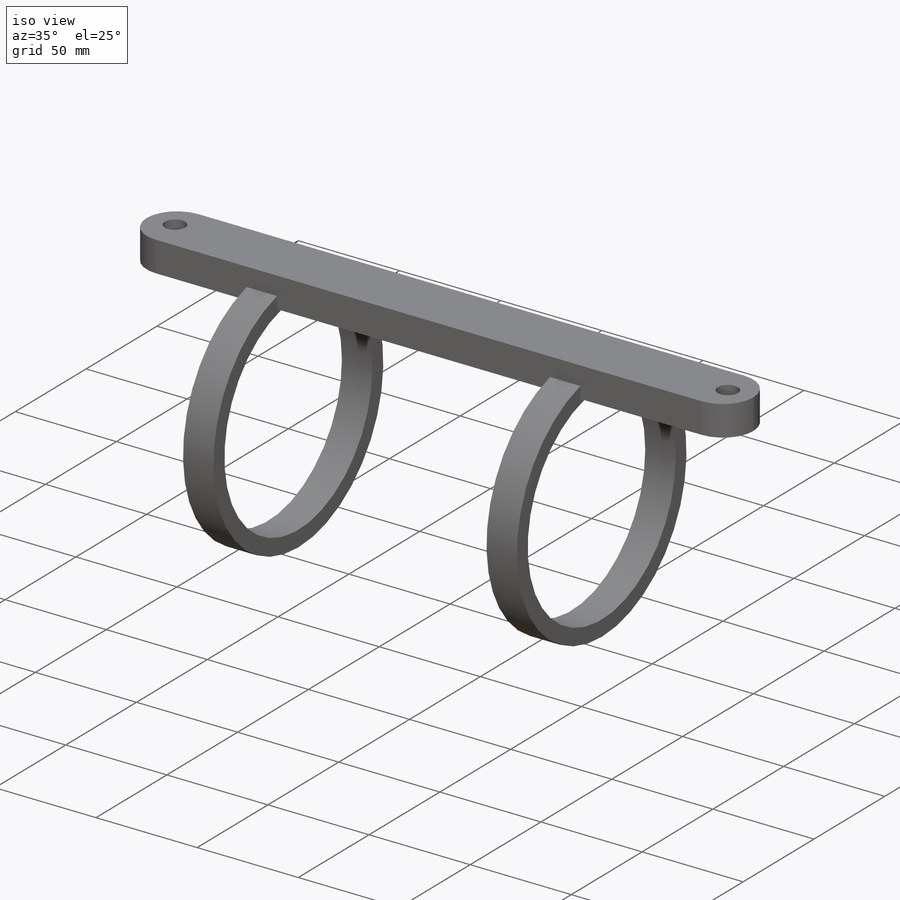
[diagram: iso view]
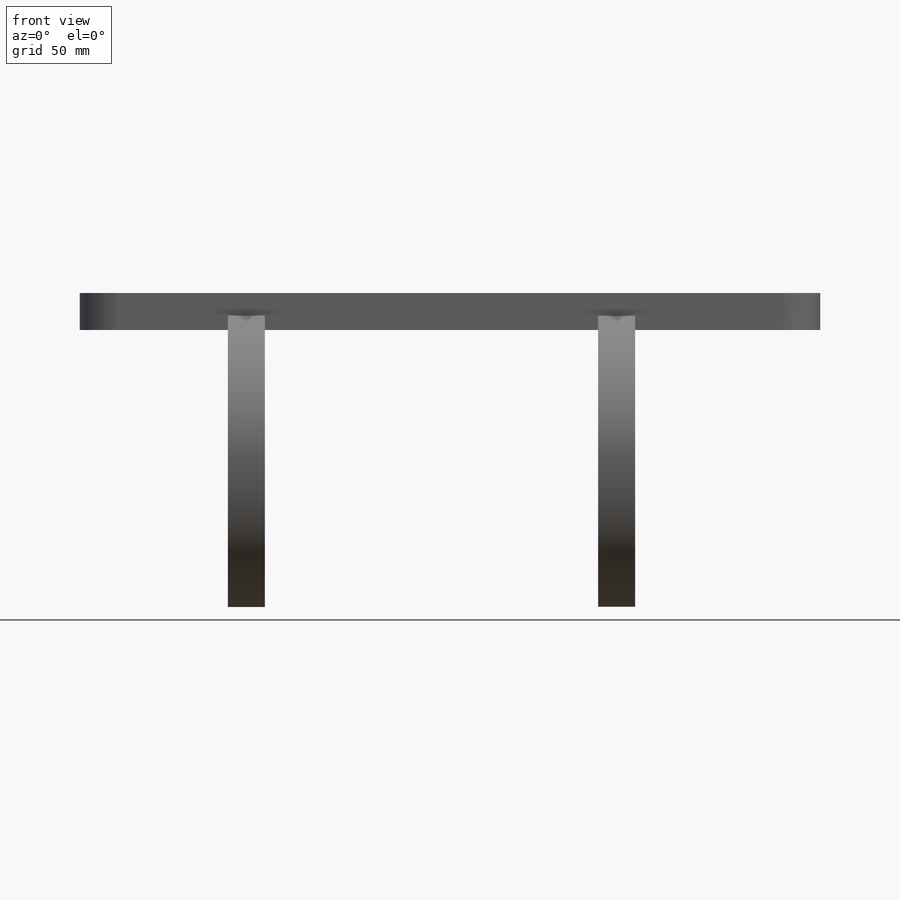
[diagram: front view]
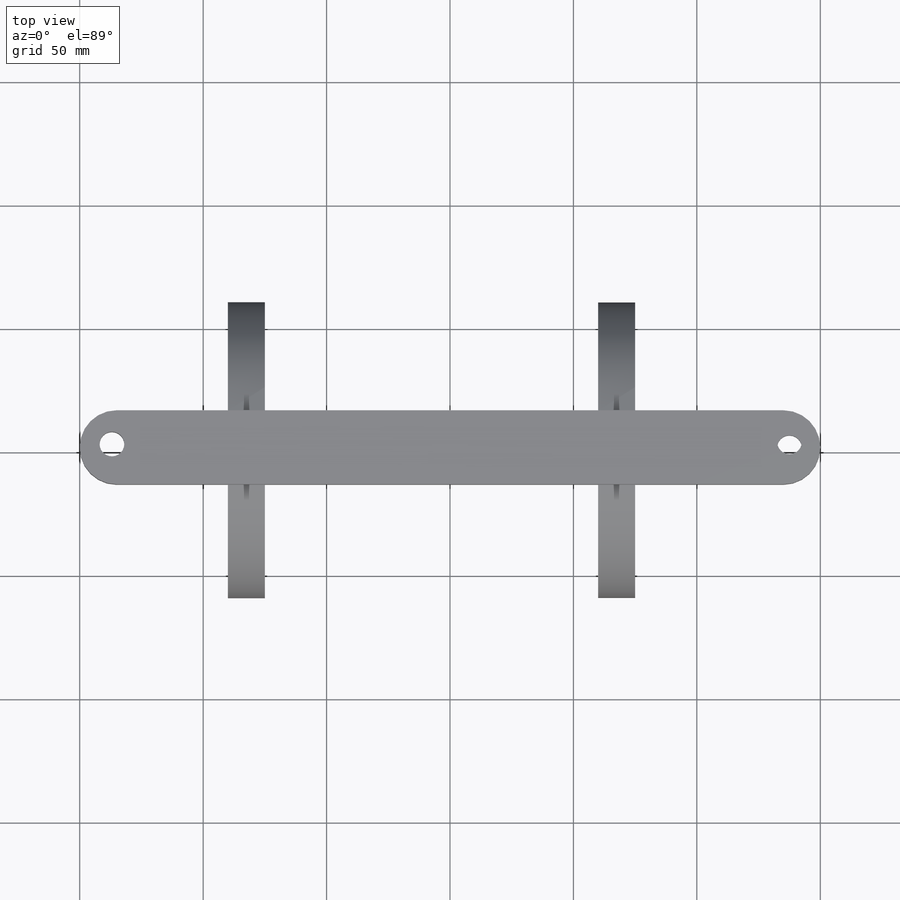
[diagram: top view]
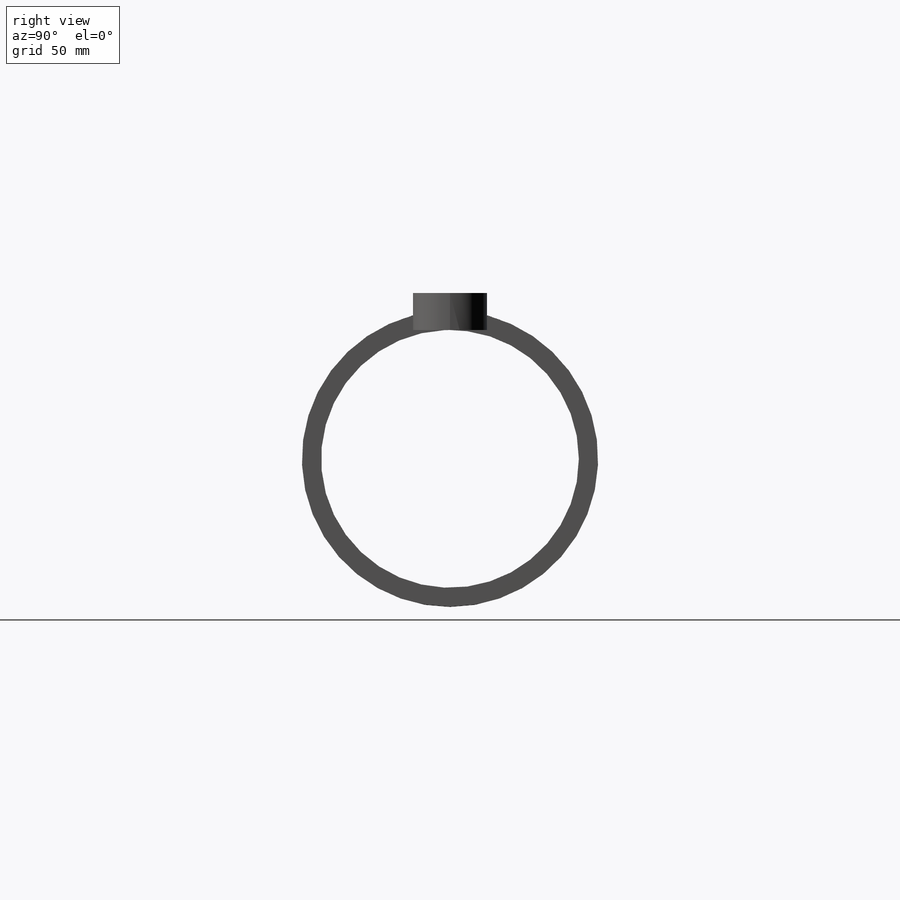
[diagram: right view]
SOLIDWORKS PART (.sldprt)
format: sldprt  version: not decoded by parser v0  size: 220,160 bytes
history: native  units: mm
features: sketch x6, fillet x4, extrude x3, hole x2, material x1 (+12 scaffold rows collapsed)
feature tree (28):
  scaffold x12  (default folders/planes/origin — collapsed)
  material  "Material <not specified>"
  sketch  "Sketch1"  dims[D1=300.0mm D2=30.0mm]
  extrude  "Boss-Extrude1"  Depth=15mm
  fillet  "Fillet1"  Radius=15mm
  fillet  "Fillet2"  Radius=15mm
  fillet  "Fillet3"  Radius=15mm
  fillet  "Fillet4"  Radius=15mm
  sketch  "Sketch2"  dims[D1=120.0mm]
  extrude  "Boss-Extrude2"  Depth=15mm
  sketch  "Sketch3"
  extrude  "Boss-Extrude3"  Depth=15mm
  sketch  "Sketch8"  dims[c1.D1=10.0mm c2.D1=10.0mm]
  hole  "Hole3"  [1 undecoded]
  sketch  "Sketch9"  dims[c1.D1=10.0mm c2.D1=10.0mm]
  hole  "Hole4"  [1 undecoded]
  sketch  "Sketch10"  dims[c1.D1=10.0mm c2.D1=15.0mm]
decode coverage: 12 of 15 modeling features carry decoded parameters
note: 2 parameter values undecoded
note: suppression state not decoded; provenance and decode notes live in map.json
